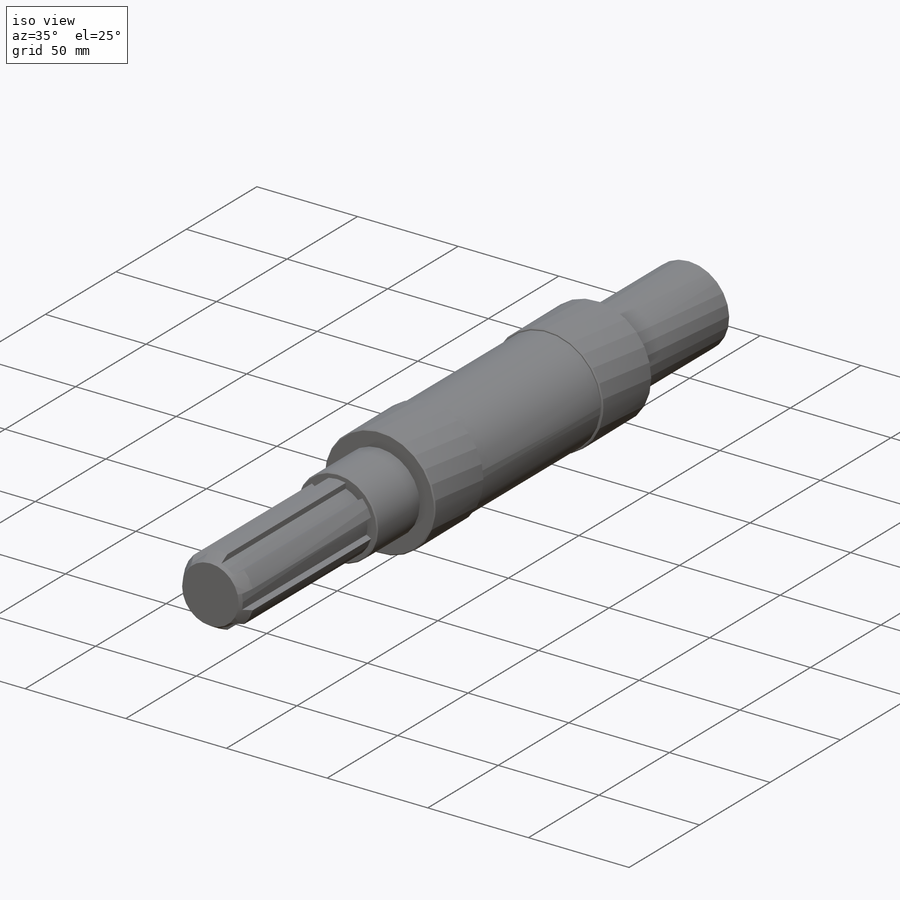
[diagram: iso view]
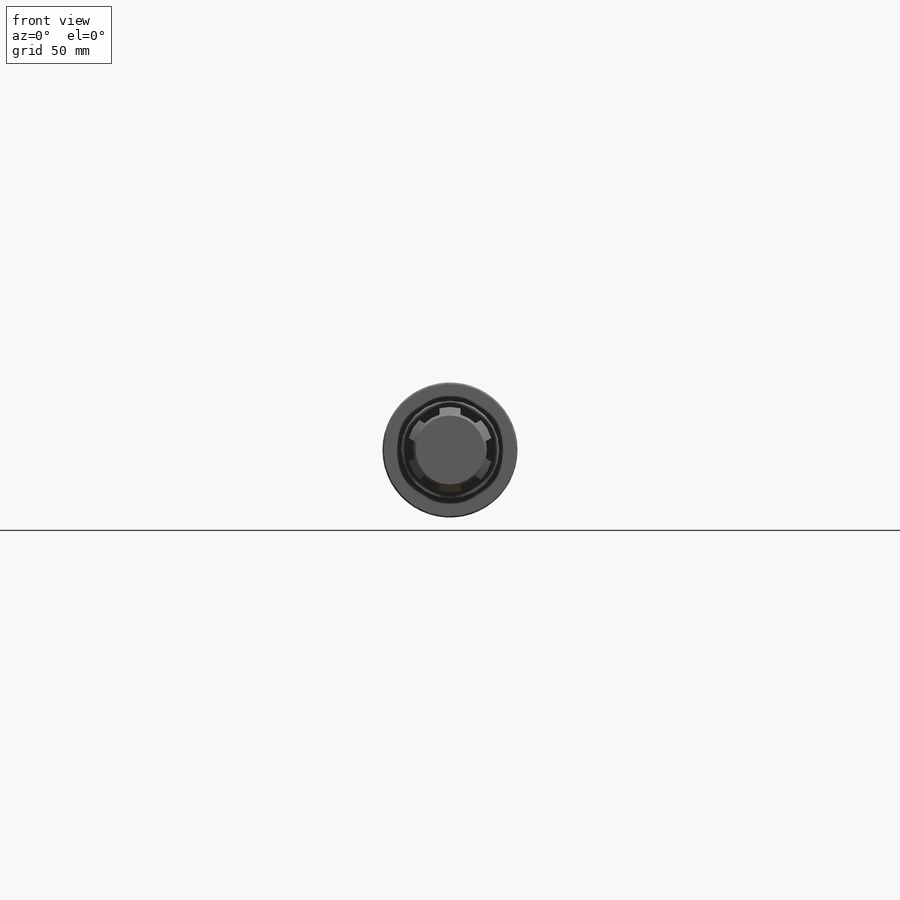
[diagram: front view]
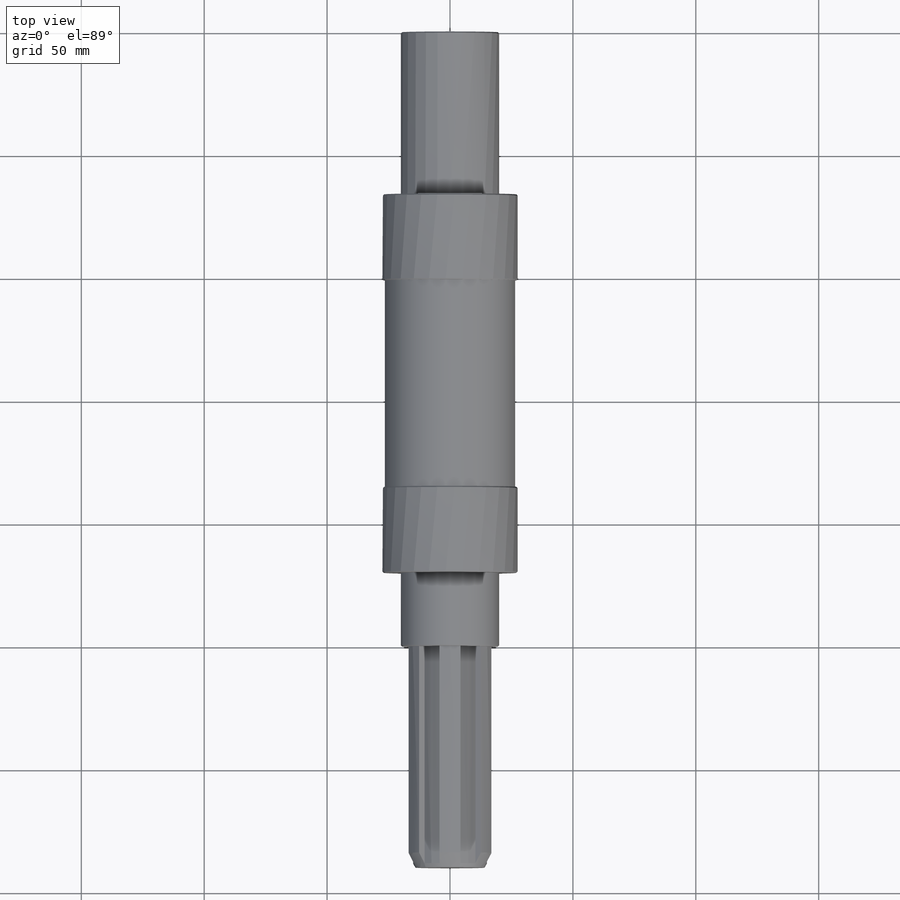
[diagram: top view]
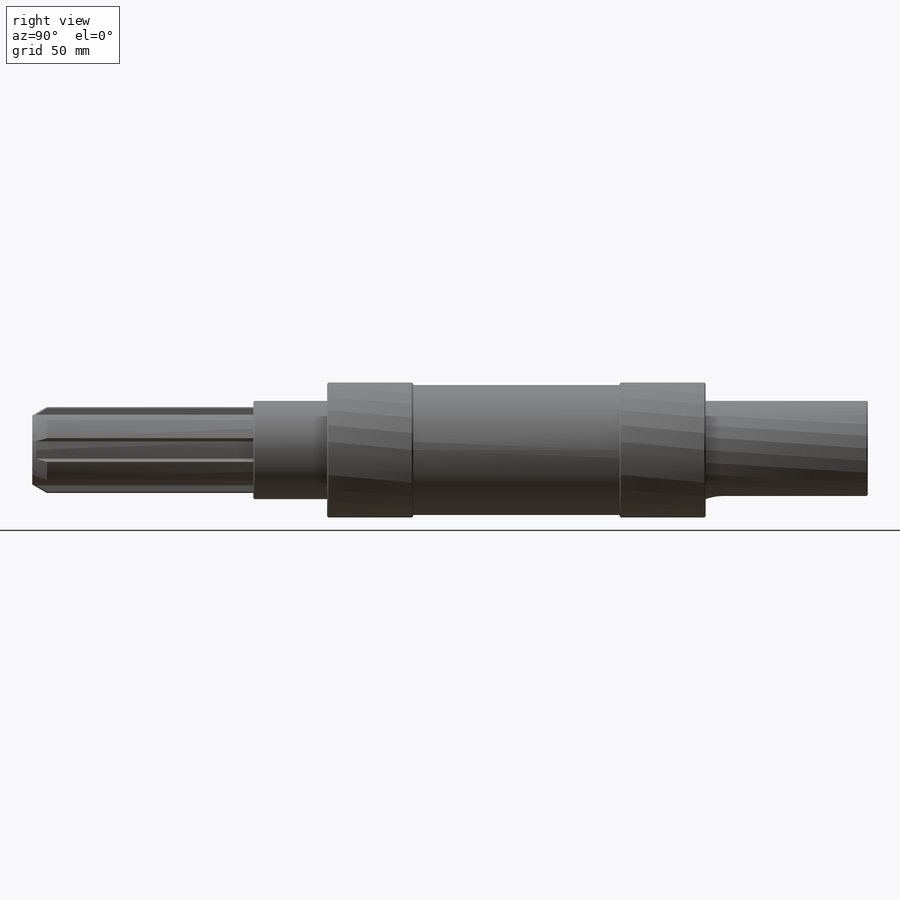
[diagram: right view]
SOLIDWORKS PART (.sldprt)
format: sldprt  version: not decoded by parser v0  size: 327,680 bytes
history: native  units: mm
features: sketch x10, extrude x6, plane x3, chamfer x2, cut_extrude x2, material x1, hole x1, thread x1 (+8 scaffold rows collapsed)
feature tree (34):
  scaffold x8  (default folders/planes/origin — collapsed)
  material  "Materiál <není určen>"
  plane  "Přední rovina"
  plane  "Horní rovina"
  plane  "Pravá rovina"
  sketch  "Skica1"  dims[D1=40.0mm]
  extrude  "Přidat vysunutím1"  Depth=66mm
  sketch  "Skica2"  dims[D1=55.0mm]
  extrude  "Přidat vysunutím2"  Depth=35mm
  sketch  "Skica3"  dims[D1=53.0mm]
  extrude  "Přidat vysunutím3"  Depth=84mm
  sketch  "Skica4"  dims[D1=55.0mm]
  extrude  "Přidat vysunutím4"  Depth=35mm
  sketch  "Skica5"  dims[D1=40.0mm]
  extrude  "Přidat vysunutím5"  Depth=30mm
  sketch  "Skica6"  dims[D1=35.0mm]
  extrude  "Přidat vysunutím6"  Depth=90mm
  chamfer  "Zkosení3"  Distance=6mm Angle=30deg
  sketch  "Skica9"  dims[c1.D1=30.0mm c1.D2=35.0mm c1.D3=8.5mm c1.D4=~2.590764mm c2.D2=6.0]
  cut_extrude  "Odebrat vysunutím16"  Depth=90mm
  chamfer  "Zkosení4"  Distance=0.5mm Angle=45deg
  hole  "M10 závit1"  Diameter=8.5mm Depth=30mm
  sketch  "Skica11"
  sketch  "Skica10"  dims[hole-wizard template sketch: 46 standard entries collapsed; hole parameters kept: c15.Průměr závitníku=8.5mm c15.Hloubka závitníku=30.0mm c15.D3=~14.816244mm c15.Úhel vrtání=118.0deg]
  thread  "Závit díry1"  Diameter=30mm  [1 undecoded]
  sketch  "Skica12"  dims[c1.D3=~7.049207mm c1.D4=7.0mm c1.D1=14.0mm c1.D2=40.0mm c2.D1=40.0mm c2.D2=7.0mm c2.D3=14.0mm]
  cut_extrude  "Odebrat vysunutím17"  Depth=15mm
decode coverage: 21 of 22 modeling features carry decoded parameters
note: ~ marks probable driven/reference dimensions
note: 1 parameter value undecoded
note: suppression state not decoded; provenance and decode notes live in map.json
